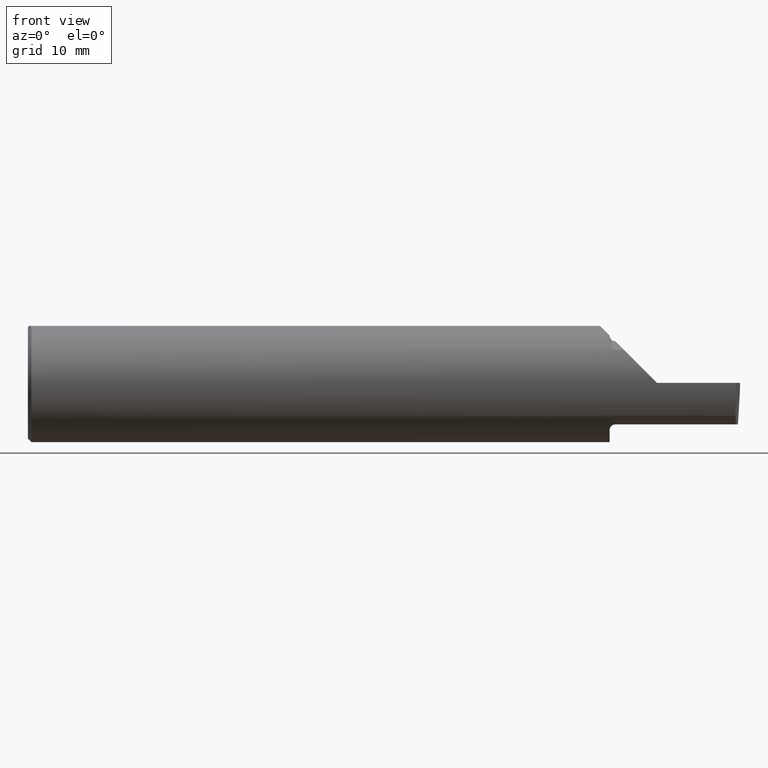
[diagram: clean part render]
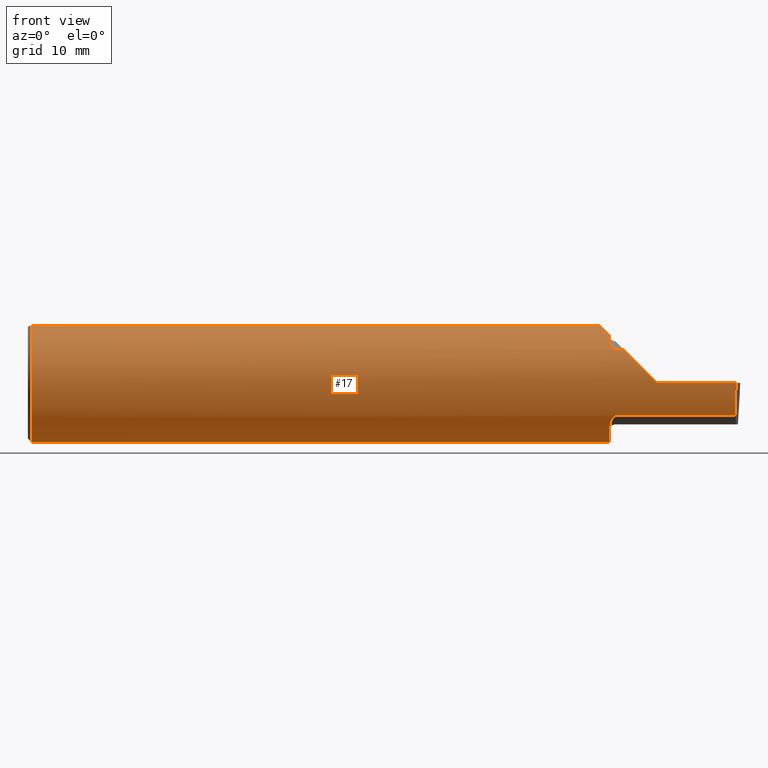
[diagram: same view with one face highlighted and labeled with its STEP entity id]
A machine part, front view. The second image highlights one B-rep face of the part: STEP entity #17.
In plain terms, the highlighted cylindrical surface (partial cylindrical patch) has radius 6.3462 mm, axis along (-1, -0, -0).
Its self-contained STEP definition (entity closure, byte-faithful):
#1 = CARTESIAN_POINT ( 'NONE',  ( 0.01499999999999998036, 0.06997856814768359246, 0.2398500000000000076 ) ) ;
#8 = ORIENTED_EDGE ( 'NONE', *, *, #626, .F. ) ;
#9 =( BOUNDED_CURVE ( )  B_SPLINE_CURVE ( 3, ( #775, #152, #412, #704 ),
 .UNSPECIFIED., .F., .T. ) 
 B_SPLINE_CURVE_WITH_KNOTS ( ( 4, 4 ),
 ( 4.712388980384689674, 5.298966915116346321 ),
 .UNSPECIFIED. ) 
 CURVE ( )  GEOMETRIC_REPRESENTATION_ITEM ( )  RATIONAL_B_SPLINE_CURVE ( ( 1.000000000000000000, 0.9715321379117538569, 0.9715321379117538569, 1.000000000000000000 ) ) 
 REPRESENTATION_ITEM ( '' )  );
#12 = ORIENTED_EDGE ( 'NONE', *, *, #57, .F. ) ;
#17 = ADVANCED_FACE ( 'NONE', ( #468 ), #537, .T. ) ;
#18 = CARTESIAN_POINT ( 'NONE',  ( 2.410150000000002013, 0.06997856814768359246, 0.2398500000000000076 ) ) ;
#31 = CARTESIAN_POINT ( 'NONE',  ( 2.475000000000000089, -0.2080850024789291375, -0.1382955322609665805 ) ) ;
#39 = LINE ( 'NONE', #286, #319 ) ;
#40 = CARTESIAN_POINT ( 'NONE',  ( 2.450000000000001066, -0.1665641037263010105, 0.1863429692936361126 ) ) ;
#41 = VERTEX_POINT ( 'NONE', #406 ) ;
#44 = CARTESIAN_POINT ( 'NONE',  ( 2.451849548162864600, -0.1805300287242675161, 0.1728462070311779508 ) ) ;
#54 = CARTESIAN_POINT ( 'NONE',  ( 2.450000000000000178, -0.1616050818046604332, -0.1905487340154980169 ) ) ;
#57 = EDGE_CURVE ( 'NONE', #318, #558, #600, .T. ) ;
#62 =( BOUNDED_CURVE ( )  B_SPLINE_CURVE ( 3, ( #120, #313, #630, #66 ),
 .UNSPECIFIED., .F., .T. ) 
 B_SPLINE_CURVE_WITH_KNOTS ( ( 4, 4 ),
 ( 0.05713034791898994463, 0.6418805321923491958 ),
 .UNSPECIFIED. ) 
 CURVE ( )  GEOMETRIC_REPRESENTATION_ITEM ( )  RATIONAL_B_SPLINE_CURVE ( ( 1.000000000000000000, 0.9717080070095445166, 0.9717080070095445166, 1.000000000000000000 ) ) 
 REPRESENTATION_ITEM ( '' )  );
#64 = VECTOR ( 'NONE', #169, 39.37007874015748143 ) ;
#66 = CARTESIAN_POINT ( 'NONE',  ( 2.982632426700502215, -0.2498495826666993769, -0.0004566631977452191267 ) ) ;
#82 = CARTESIAN_POINT ( 'NONE',  ( 2.418565128400055997, -0.09882123526961372750, 0.2314348715999460515 ) ) ;
#84 = VERTEX_POINT ( 'NONE', #786 ) ;
#95 = EDGE_CURVE ( 'NONE', #510, #491, #9, .T. ) ;
#100 = LINE ( 'NONE', #547, #64 ) ;
#107 = CARTESIAN_POINT ( 'NONE',  ( 2.462616400345756240, -0.2024684335577105199, 0.1464246884265635318 ) ) ;
#120 = CARTESIAN_POINT ( 'NONE',  ( 2.980479240051444378, -0.2080850024789291652, -0.1382955322609665250 ) ) ;
#124 = CARTESIAN_POINT ( 'NONE',  ( 2.431992138630818978, 0.1256992788918499249, 0.2180078613691827649 ) ) ;
#128 = DIRECTION ( 'NONE',  ( 0.02616100201822768243, -0.0009135623211515309658, 0.9996573249755575929 ) ) ;
#152 = CARTESIAN_POINT ( 'NONE',  ( 2.600434159100403875, -0.2498499999999999055, 0.04956584089959691769 ) ) ;
#154 = CARTESIAN_POINT ( 'NONE',  ( 2.650000000000000355, -0.2498499999999999610, 4.286263797015727350E-17 ) ) ;
#156 = EDGE_LOOP ( 'NONE', ( #357, #769, #577, #8, #694, #173, #746, #12, #541, #658, #516, #794, #732, #670, #592, #281 ) ) ;
#158 = CARTESIAN_POINT ( 'NONE',  ( 2.458176740666626170, -0.1972027065478075825, -0.1535263573771911971 ) ) ;
#159 = CARTESIAN_POINT ( 'NONE',  ( 2.450000000000000178, 0.1497498664440119198, 0.2000000000000015099 ) ) ;
#169 = DIRECTION ( 'NONE',  ( 1.000000000000000000, 0.000000000000000000, 0.000000000000000000 ) ) ;
#172 = EDGE_CURVE ( 'NONE', #413, #728, #672, .T. ) ;
#173 = ORIENTED_EDGE ( 'NONE', *, *, #334, .F. ) ;
#176 = CARTESIAN_POINT ( 'NONE',  ( 2.982644377562602589, -0.2498499999999999610, 1.813681607540488003E-17 ) ) ;
#179 = CIRCLE ( 'NONE', #616, 0.2498499999999999888 ) ;
#181 = DIRECTION ( 'NONE',  ( 0.000000000000000000, 0.000000000000000000, 1.000000000000000000 ) ) ;
#189 = CARTESIAN_POINT ( 'NONE',  ( 2.450000000000000178, -0.1497498664440119476, 0.2000000000000015099 ) ) ;
#200 = VERTEX_POINT ( 'NONE', #176 ) ;
#214 = DIRECTION ( 'NONE',  ( 1.000000000000000000, 0.000000000000000000, 0.000000000000000000 ) ) ;
#220 = EDGE_CURVE ( 'NONE', #782, #84, #270, .T. ) ;
#221 = CARTESIAN_POINT ( 'NONE',  ( 2.473318040126430528, -0.2080850024789293318, -0.1382955322609664139 ) ) ;
#230 = VERTEX_POINT ( 'NONE', #31 ) ;
#231 = DIRECTION ( 'NONE',  ( 0.000000000000000000, 0.000000000000000000, 1.000000000000000000 ) ) ;
#233 = DIRECTION ( 'NONE',  ( -1.000000000000000000, -0.000000000000000000, -0.000000000000000000 ) ) ;
#237 = CARTESIAN_POINT ( 'NONE',  ( 0.01499999999999999944, 0.000000000000000000, 0.000000000000000000 ) ) ;
#241 = CARTESIAN_POINT ( 'NONE',  ( 2.982632426700502215, -0.2498495826666993769, -0.0004566631977452191267 ) ) ;
#242 = DIRECTION ( 'NONE',  ( 1.000000000000000000, 0.000000000000000000, 0.000000000000000000 ) ) ;
#246 = VERTEX_POINT ( 'NONE', #476 ) ;
#248 = CARTESIAN_POINT ( 'NONE',  ( 2.450000000000000178, -0.1616050818046604332, 0.1905487340154980169 ) ) ;
#249 = CARTESIAN_POINT ( 'NONE',  ( 2.450000000000000178, 0.1497498664440119198, 0.2000000000000015099 ) ) ;
#252 = CARTESIAN_POINT ( 'NONE',  ( 2.450000000000000178, -0.1616050818046604332, -0.1905487340154980169 ) ) ;
#254 = VERTEX_POINT ( 'NONE', #159 ) ;
#258 = DIRECTION ( 'NONE',  ( 0.000000000000000000, 0.000000000000000000, -1.000000000000000000 ) ) ;
#267 = EDGE_CURVE ( 'NONE', #41, #230, #485, .T. ) ;
#270 = B_SPLINE_CURVE_WITH_KNOTS ( 'NONE', 3,
 ( #430, #40, #301, #44, #548, #367, #731, #107, #557, #297, #792, #481, #553, #424 ),
 .UNSPECIFIED., .F., .F.,
 ( 4, 2, 2, 2, 2, 2, 4 ),
 ( 0.0003834465838148173595, 0.0008781406165086686789, 0.001372834649202519944, 0.001867528681896371209, 0.002114875698243302155, 0.002238549206416767193, 0.002362222714590232232 ),
 .UNSPECIFIED. ) ;
#274 = CARTESIAN_POINT ( 'NONE',  ( 2.431992138630818978, -0.1256992788918499804, 0.2180078613691826817 ) ) ;
#281 = ORIENTED_EDGE ( 'NONE', *, *, #387, .T. ) ;
#283 = AXIS2_PLACEMENT_3D ( 'NONE', #333, #399, #722 ) ;
#286 = CARTESIAN_POINT ( 'NONE',  ( 4.499279347985559139E-32, -0.2498499999999999610, 3.673940397442053459E-16 ) ) ;
#292 = CARTESIAN_POINT ( 'NONE',  ( 2.690500000000000114, -0.2080850024789291652, -0.1382955322609665250 ) ) ;
#297 = CARTESIAN_POINT ( 'NONE',  ( 2.467647060162629025, -0.2062109266231184901, 0.1410799729252286139 ) ) ;
#301 = CARTESIAN_POINT ( 'NONE',  ( 2.450367168219774516, -0.1713400252854603567, 0.1819601557798505298 ) ) ;
#313 = CARTESIAN_POINT ( 'NONE',  ( 2.980602402804240381, -0.2354324170447328890, -0.09714751587400699551 ) ) ;
#317 = DIRECTION ( 'NONE',  ( 1.000000000000000000, 0.000000000000000000, 0.000000000000000000 ) ) ;
#318 = VERTEX_POINT ( 'NONE', #700 ) ;
#319 = VECTOR ( 'NONE', #605, 39.37007874015748143 ) ;
#323 = EDGE_CURVE ( 'NONE', #806, #200, #395, .T. ) ;
#331 = B_SPLINE_CURVE_WITH_KNOTS ( 'NONE', 3,
 ( #552, #221, #804, #420, #680, #598, #726, #158, #480, #730, #668, #54 ),
 .UNSPECIFIED., .F., .F.,
 ( 4, 2, 2, 2, 2, 4 ),
 ( 1.964491429112497443E-07, 0.0001260981470478309680, 0.0002519998449527506546, 0.0005038032407626181087, 0.001007410032382352692, 0.002014623615621821857 ),
 .UNSPECIFIED. ) ;
#333 = CARTESIAN_POINT ( 'NONE',  ( 0.000000000000000000, 0.000000000000000000, 0.000000000000000000 ) ) ;
#334 = EDGE_CURVE ( 'NONE', #408, #782, #179, .T. ) ;
#340 = AXIS2_PLACEMENT_3D ( 'NONE', #640, #242, #499 ) ;
#357 = ORIENTED_EDGE ( 'NONE', *, *, #323, .T. ) ;
#362 = EDGE_CURVE ( 'NONE', #709, #254, #448, .T. ) ;
#367 = CARTESIAN_POINT ( 'NONE',  ( 2.456159563508733878, -0.1933019864360850659, 0.1584298865564828795 ) ) ;
#370 = EDGE_CURVE ( 'NONE', #246, #318, #799, .T. ) ;
#387 = EDGE_CURVE ( 'NONE', #41, #806, #62, .T. ) ;
#390 = CARTESIAN_POINT ( 'NONE',  ( 2.450000000000000178, 0.000000000000000000, 0.000000000000000000 ) ) ;
#395 = LINE ( 'NONE', #644, #511 ) ;
#397 = EDGE_CURVE ( 'NONE', #413, #254, #492, .T. ) ;
#399 = DIRECTION ( 'NONE',  ( -1.000000000000000000, -0.000000000000000000, -0.000000000000000000 ) ) ;
#406 = CARTESIAN_POINT ( 'NONE',  ( 2.980479240051444378, -0.2080850024789291652, -0.1382955322609665250 ) ) ;
#408 = VERTEX_POINT ( 'NONE', #189 ) ;
#412 = CARTESIAN_POINT ( 'NONE',  ( 2.552984868485333347, -0.2355204011147992438, 0.09701513151466735485 ) ) ;
#413 = VERTEX_POINT ( 'NONE', #18 ) ;
#418 = DIRECTION ( 'NONE',  ( -1.000000000000000000, -0.000000000000000000, -0.000000000000000000 ) ) ;
#420 = CARTESIAN_POINT ( 'NONE',  ( 2.468863362722769406, -0.2068301641248772305, -0.1401678546132358316 ) ) ;
#424 = CARTESIAN_POINT ( 'NONE',  ( 2.475000000000000089, -0.2080850024789292485, 0.1382955322609664972 ) ) ;
#430 = CARTESIAN_POINT ( 'NONE',  ( 2.450000000000000178, -0.1616050818046604332, 0.1905487340154980169 ) ) ;
#448 = CIRCLE ( 'NONE', #340, 0.2498499999999999888 ) ;
#461 = CARTESIAN_POINT ( 'NONE',  ( 0.000000000000000000, -0.06997856814768359246, 0.2398500000000000076 ) ) ;
#468 = FACE_OUTER_BOUND ( 'NONE', #156, .T. ) ;
#472 = CARTESIAN_POINT ( 'NONE',  ( 2.511704467739034552, -0.2080850024789292485, 0.1382955322609664139 ) ) ;
#476 = CARTESIAN_POINT ( 'NONE',  ( 0.01499999999999999944, 0.000000000000000000, -0.2498499999999999888 ) ) ;
#480 = CARTESIAN_POINT ( 'NONE',  ( 2.456147634408388125, -0.1932733126899462417, -0.1584637047788195474 ) ) ;
#481 = CARTESIAN_POINT ( 'NONE',  ( 2.471718393013768278, -0.2077830475237243124, 0.1387513848711933728 ) ) ;
#485 = LINE ( 'NONE', #292, #667 ) ;
#491 = VERTEX_POINT ( 'NONE', #472 ) ;
#492 =( BOUNDED_CURVE ( )  B_SPLINE_CURVE ( 3, ( #817, #763, #124, #249 ),
 .UNSPECIFIED., .F., .T. ) 
 B_SPLINE_CURVE_WITH_KNOTS ( ( 4, 4 ),
 ( 0.2838798623474212968, 0.6427002007837403497 ),
 .UNSPECIFIED. ) 
 CURVE ( )  GEOMETRIC_REPRESENTATION_ITEM ( )  RATIONAL_B_SPLINE_CURVE ( ( 1.000000000000000000, 0.9892994125303244957, 0.9892994125303244957, 1.000000000000000000 ) ) 
 REPRESENTATION_ITEM ( '' )  );
#499 = DIRECTION ( 'NONE',  ( 0.000000000000000000, 0.000000000000000000, -1.000000000000000000 ) ) ;
#501 = CARTESIAN_POINT ( 'NONE',  ( 0.01499999999999999944, 0.000000000000000000, 0.000000000000000000 ) ) ;
#510 = VERTEX_POINT ( 'NONE', #154 ) ;
#511 = VECTOR ( 'NONE', #128, 39.37007874015748854 ) ;
#515 = CARTESIAN_POINT ( 'NONE',  ( 2.410150000000002013, -0.06997856814768374512, 0.2398500000000000076 ) ) ;
#516 = ORIENTED_EDGE ( 'NONE', *, *, #172, .F. ) ;
#518 =( BOUNDED_CURVE ( )  B_SPLINE_CURVE ( 3, ( #647, #274, #82, #515 ),
 .UNSPECIFIED., .F., .F. ) 
 B_SPLINE_CURVE_WITH_KNOTS ( ( 4, 4 ),
 ( 5.640485106395845882, 5.999305444832164547 ),
 .UNSPECIFIED. ) 
 CURVE ( )  GEOMETRIC_REPRESENTATION_ITEM ( )  RATIONAL_B_SPLINE_CURVE ( ( 1.000000000000000000, 0.9892994125303244957, 0.9892994125303244957, 1.000000000000000000 ) ) 
 REPRESENTATION_ITEM ( '' )  );
#530 = EDGE_CURVE ( 'NONE', #408, #558, #518, .T. ) ;
#537 = CYLINDRICAL_SURFACE ( 'NONE', #283, 0.2498499999999999888 ) ;
#541 = ORIENTED_EDGE ( 'NONE', *, *, #370, .F. ) ;
#547 = CARTESIAN_POINT ( 'NONE',  ( 2.690500000000000114, -0.2080850024789291652, 0.1382955322609665250 ) ) ;
#548 = CARTESIAN_POINT ( 'NONE',  ( 2.452968662030529323, -0.1849684355203380370, 0.1680843977756266150 ) ) ;
#552 = CARTESIAN_POINT ( 'NONE',  ( 2.475000000000000089, -0.2080850024789291375, -0.1382955322609665805 ) ) ;
#553 = CARTESIAN_POINT ( 'NONE',  ( 2.473329956043142985, -0.2080850024798593101, 0.1382955322595671721 ) ) ;
#557 = CARTESIAN_POINT ( 'NONE',  ( 2.464343523383979218, -0.2041337200786086103, 0.1440846171672507392 ) ) ;
#558 = VERTEX_POINT ( 'NONE', #774 ) ;
#577 = ORIENTED_EDGE ( 'NONE', *, *, #95, .T. ) ;
#592 = ORIENTED_EDGE ( 'NONE', *, *, #267, .F. ) ;
#598 = CARTESIAN_POINT ( 'NONE',  ( 2.464302603425052141, -0.2041009206016216881, -0.1441313430770034543 ) ) ;
#599 = EDGE_CURVE ( 'NONE', #728, #246, #639, .T. ) ;
#600 = LINE ( 'NONE', #461, #749 ) ;
#605 = DIRECTION ( 'NONE',  ( -1.000000000000000000, -0.000000000000000000, -0.000000000000000000 ) ) ;
#616 = AXIS2_PLACEMENT_3D ( 'NONE', #390, #317, #258 ) ;
#626 = EDGE_CURVE ( 'NONE', #84, #491, #100, .T. ) ;
#630 = CARTESIAN_POINT ( 'NONE',  ( 2.981341028891338230, -0.2497592792593404665, -0.04986346618387292595 ) ) ;
#639 = CIRCLE ( 'NONE', #688, 0.2498499999999999888 ) ;
#640 = CARTESIAN_POINT ( 'NONE',  ( 2.450000000000000178, 0.000000000000000000, 0.000000000000000000 ) ) ;
#644 = CARTESIAN_POINT ( 'NONE',  ( 2.977412177158956563, -0.2496672875357696664, -0.1999314649951114686 ) ) ;
#647 = CARTESIAN_POINT ( 'NONE',  ( 2.450000000000000178, -0.1497498664440119476, 0.2000000000000015099 ) ) ;
#654 = EDGE_CURVE ( 'NONE', #200, #510, #39, .T. ) ;
#658 = ORIENTED_EDGE ( 'NONE', *, *, #599, .F. ) ;
#667 = VECTOR ( 'NONE', #797, 39.37007874015748143 ) ;
#668 = CARTESIAN_POINT ( 'NONE',  ( 2.450000000000000178, -0.1716188362992554783, -0.1820560320165480195 ) ) ;
#669 = CARTESIAN_POINT ( 'NONE',  ( 0.000000000000000000, 0.06997856814768359246, 0.2398500000000000076 ) ) ;
#670 = ORIENTED_EDGE ( 'NONE', *, *, #685, .F. ) ;
#672 = LINE ( 'NONE', #669, #733 ) ;
#680 = CARTESIAN_POINT ( 'NONE',  ( 2.467611663768900510, -0.2061921161193833452, -0.1411075319999372246 ) ) ;
#685 = EDGE_CURVE ( 'NONE', #230, #709, #331, .T. ) ;
#688 = AXIS2_PLACEMENT_3D ( 'NONE', #237, #418, #231 ) ;
#694 = ORIENTED_EDGE ( 'NONE', *, *, #220, .F. ) ;
#700 = CARTESIAN_POINT ( 'NONE',  ( 0.01499999999999999944, -0.06997856814768359246, 0.2398500000000000076 ) ) ;
#704 = CARTESIAN_POINT ( 'NONE',  ( 2.511704467739034552, -0.2080850024789292485, 0.1382955322609664139 ) ) ;
#709 = VERTEX_POINT ( 'NONE', #252 ) ;
#720 = AXIS2_PLACEMENT_3D ( 'NONE', #501, #750, #181 ) ;
#722 = DIRECTION ( 'NONE',  ( 0.000000000000000000, 0.000000000000000000, 1.000000000000000000 ) ) ;
#726 = CARTESIAN_POINT ( 'NONE',  ( 2.462579853086619419, -0.2024300470081737413, -0.1464774911482682185 ) ) ;
#728 = VERTEX_POINT ( 'NONE', #1 ) ;
#730 = CARTESIAN_POINT ( 'NONE',  ( 2.451385488563270432, -0.1808287530430327805, -0.1728790649396284851 ) ) ;
#731 = CARTESIAN_POINT ( 'NONE',  ( 2.458182335268384922, -0.1972192205116133357, 0.1535061413537207597 ) ) ;
#732 = ORIENTED_EDGE ( 'NONE', *, *, #362, .F. ) ;
#733 = VECTOR ( 'NONE', #233, 39.37007874015748143 ) ;
#746 = ORIENTED_EDGE ( 'NONE', *, *, #530, .T. ) ;
#749 = VECTOR ( 'NONE', #214, 39.37007874015748143 ) ;
#750 = DIRECTION ( 'NONE',  ( -1.000000000000000000, -0.000000000000000000, -0.000000000000000000 ) ) ;
#763 = CARTESIAN_POINT ( 'NONE',  ( 2.418565128400055997, 0.09882123526961361648, 0.2314348715999461070 ) ) ;
#769 = ORIENTED_EDGE ( 'NONE', *, *, #654, .T. ) ;
#774 = CARTESIAN_POINT ( 'NONE',  ( 2.410150000000002013, -0.06997856814768374512, 0.2398500000000000076 ) ) ;
#775 = CARTESIAN_POINT ( 'NONE',  ( 2.650000000000000355, -0.2498499999999999610, 4.286263797015727350E-17 ) ) ;
#782 = VERTEX_POINT ( 'NONE', #248 ) ;
#786 = CARTESIAN_POINT ( 'NONE',  ( 2.475000000000000089, -0.2080850024789292485, 0.1382955322609664972 ) ) ;
#792 = CARTESIAN_POINT ( 'NONE',  ( 2.468876997637614590, -0.2068363917296602017, 0.1401586554522226691 ) ) ;
#794 = ORIENTED_EDGE ( 'NONE', *, *, #397, .T. ) ;
#797 = DIRECTION ( 'NONE',  ( -1.000000000000000000, -0.000000000000000000, -0.000000000000000000 ) ) ;
#799 = CIRCLE ( 'NONE', #720, 0.2498499999999999888 ) ;
#804 = CARTESIAN_POINT ( 'NONE',  ( 2.471700027347579542, -0.2077785947292770385, -0.1387580622202823077 ) ) ;
#806 = VERTEX_POINT ( 'NONE', #241 ) ;
#817 = CARTESIAN_POINT ( 'NONE',  ( 2.410150000000002013, 0.06997856814768359246, 0.2398500000000000076 ) ) ;